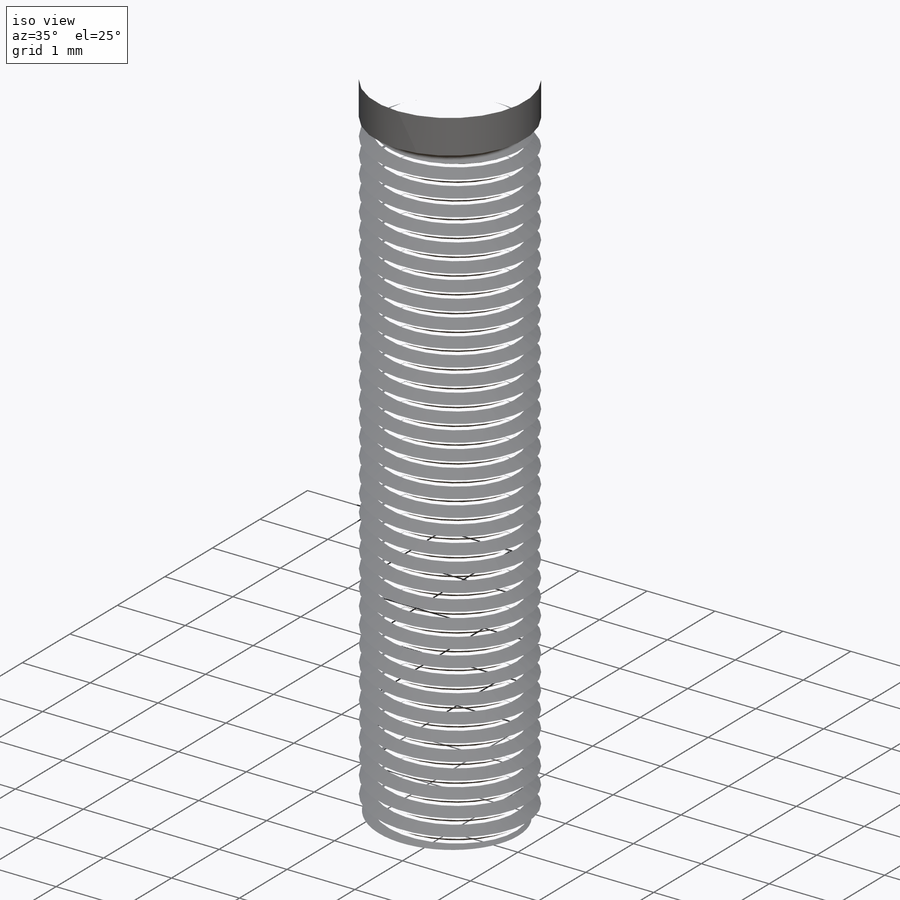
[diagram: iso view]
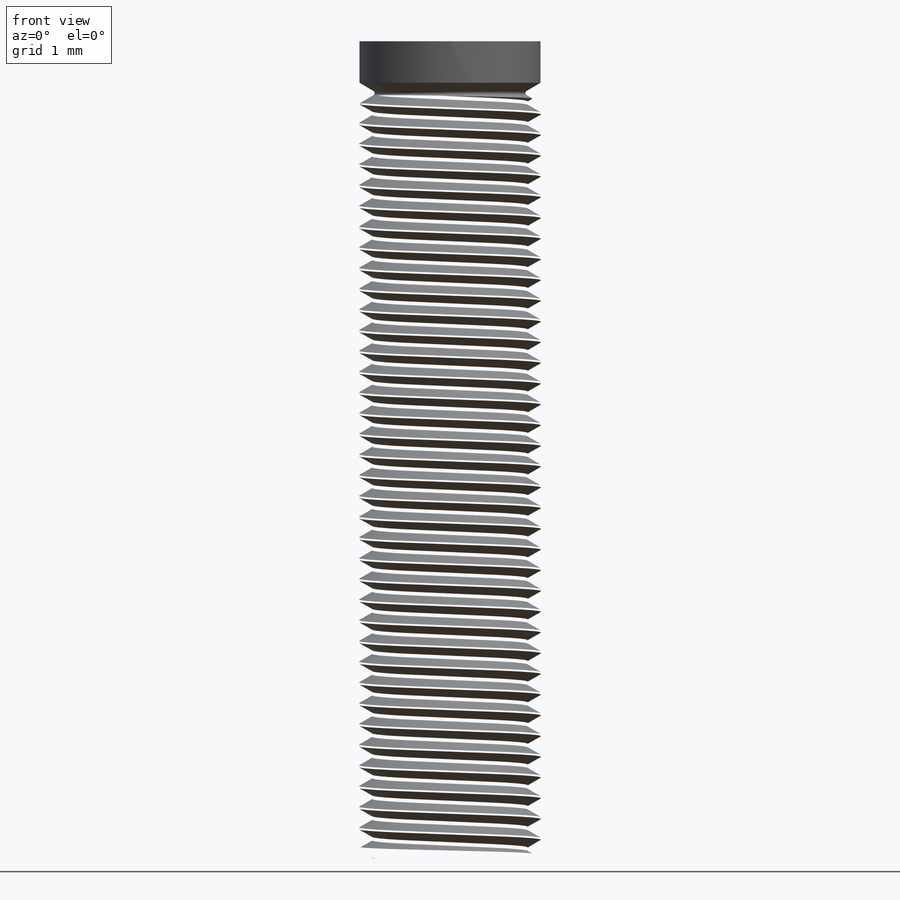
[diagram: front view]
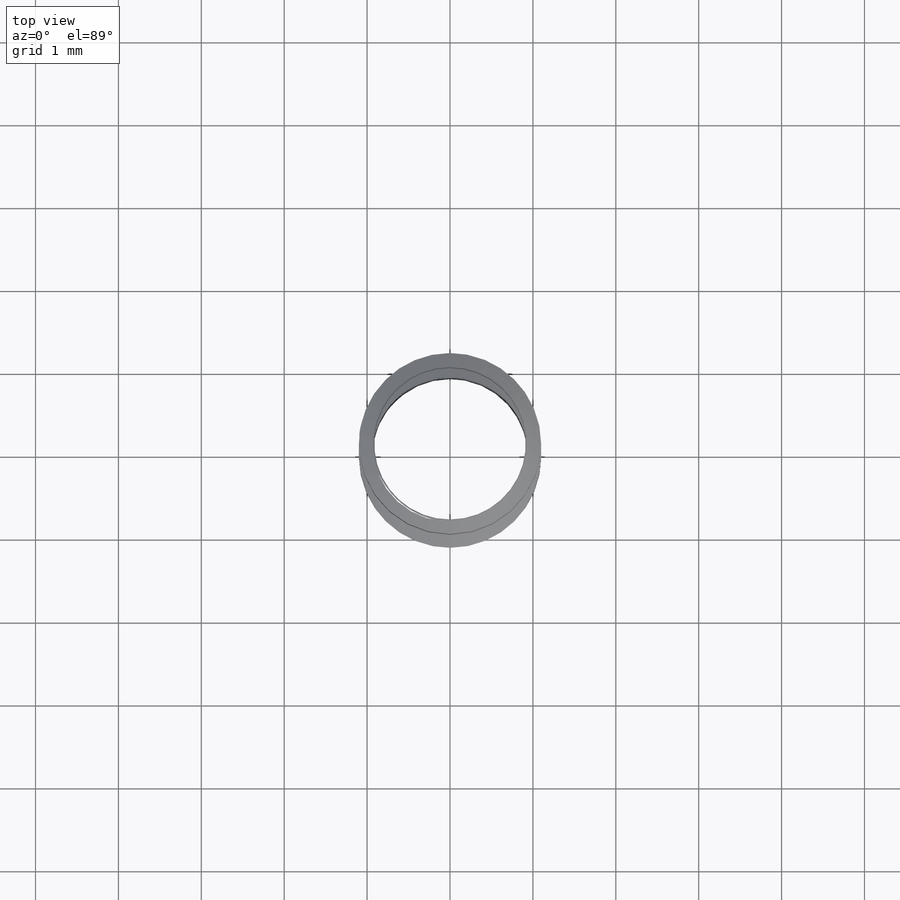
[diagram: top view]
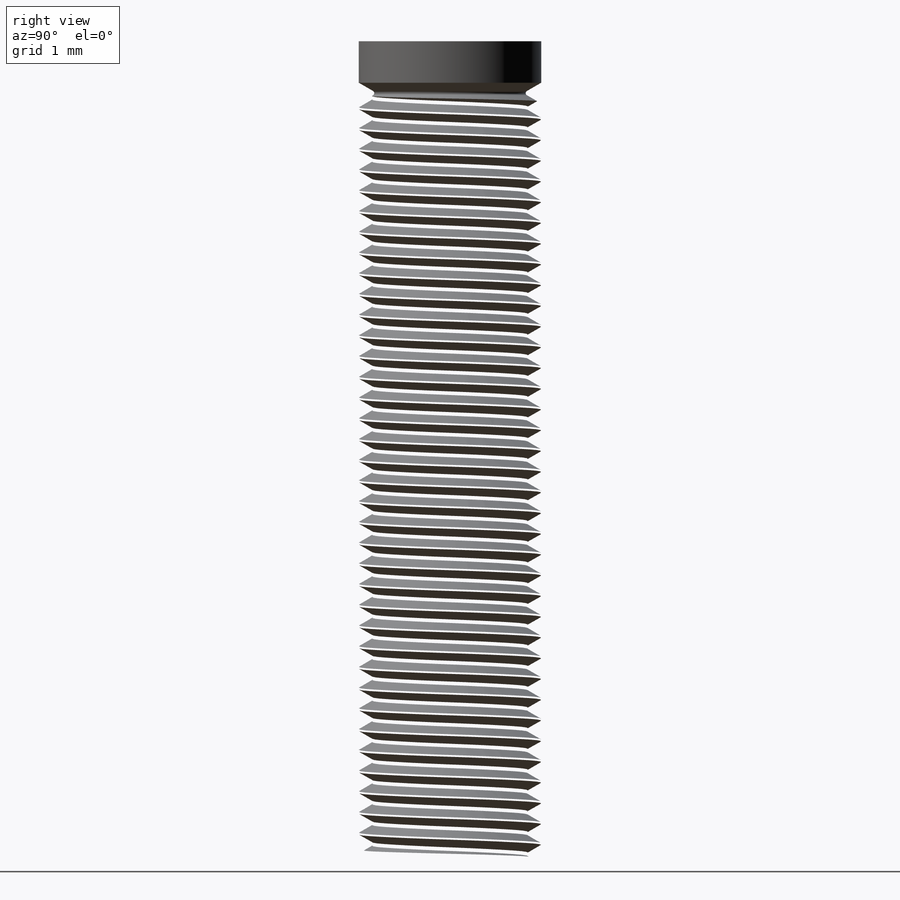
[diagram: right view]
SOLIDWORKS PART (.sldprt)
format: sldprt  version: not decoded by parser v0  size: 2,253,824 bytes
history: native  units: mm
features: sketch x7, cut_revolve x2, material x1, plane x1, extrude x1, helix x1, sweep x1, revolve x1, cut_extrude x1 (+12 scaffold rows collapsed)
feature tree (28):
  scaffold x12  (default folders/planes/origin — collapsed)
  material  "201 Annealed Stainless Steel (SS)"
  plane  "Plane1"  Offset=0.75mm
  sketch  "Sketch1"  dims[D1=2.2mm]
  extrude  "Extrude1"  Depth=10mm
  sketch  "Sketch4"  dims[c1.D1=0.03mm c1.D2=~0.027769mm c2.D1=0.025mm c2.D2=~0.171506mm c3.D2=60.0deg c3.D3=0.25mm c3.D4=0.5mm c3.D5=1.11mm c4.D3=0.24mm]
  sketch  "Sketch3"  dims[D1=2.2mm]
  helix  "Helix/Spiral1"  Pitch=12.5mm
  sweep  "Cut-Sweep6"
  sketch  "Sketch2"  dims[c1.D2=0.03mm c1.D1=~0.19883mm c2.D1=60.0deg c2.D2=~0.095682mm c3.D2=~21.347877deg c3.D3=0.25mm c3.D4=0.5mm c3.D5=2.2mm]
  cut_revolve  "Cut-Revolve1"  Angle=360deg
  sketch  "Sketch5"  dims[c1.D1=~0.431147mm c2.D1=45.0deg c2.D2=1.2mm c2.D3=0.4mm]
  cut_revolve  "Cut-Revolve2"  Angle=360deg
  sketch  "Sketch7"  dims[D1=1.8mm D2=4.0mm]
  revolve  "Revolve1"  Angle=360deg
  sketch  "Sketch8"  dims[D1=1.0mm D2=1.0mm D3=0.4mm D4=0.4mm]
  cut_extrude  "Extrude2"  [1 undecoded]
decode coverage: 12 of 14 modeling features carry decoded parameters
note: ~ marks probable driven/reference dimensions
note: 1 parameter value undecoded
note: suppression state not decoded; provenance and decode notes live in map.json
